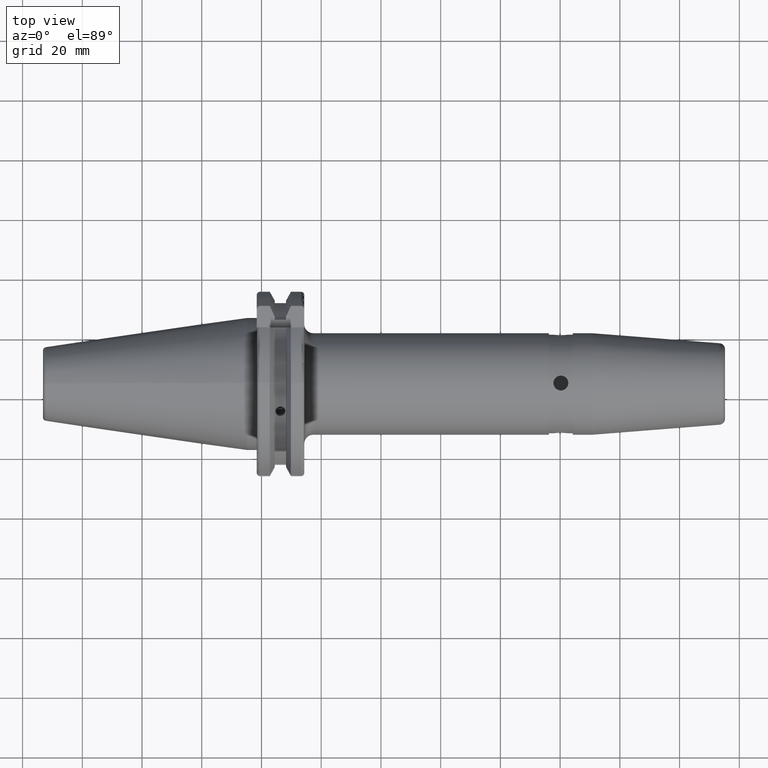
[diagram: clean part render]
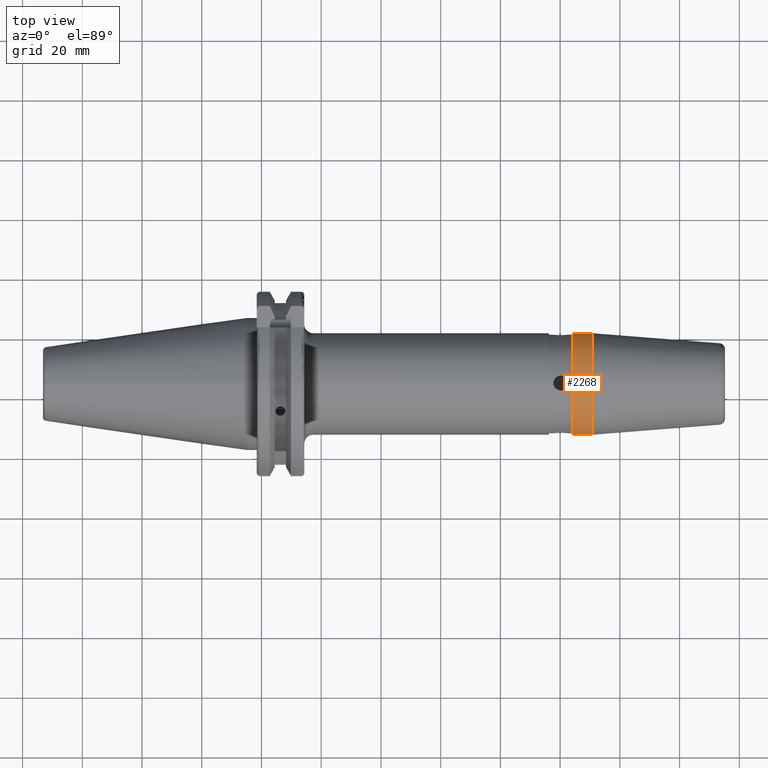
[diagram: same view with one face highlighted and labeled with its STEP entity id]
A machine part, top view. The second image highlights one B-rep face of the part: STEP entity #2268.
In plain terms, the highlighted cylindrical surface (partial cylindrical patch) has radius 17 mm, axis along (-1, 0, 0).
Its self-contained STEP definition (entity closure, byte-faithful):
#48 = VECTOR ( 'NONE', #1533, 1000.000000000000000 ) ;
#119 = DIRECTION ( 'NONE',  ( -1.000000000000000000, 0.0000000000000000000, 0.0000000000000000000 ) ) ;
#263 = DIRECTION ( 'NONE',  ( 0.0000000000000000000, 0.0000000000000000000, 1.000000000000000000 ) ) ;
#362 = CARTESIAN_POINT ( 'NONE',  ( 115.5282834233886859, 0.0000000000000000000, 0.0000000000000000000 ) ) ;
#520 = EDGE_LOOP ( 'NONE', ( #5213, #1461, #2389, #3382 ) ) ;
#744 = CYLINDRICAL_SURFACE ( 'NONE', #5543, 17.00000000000000000 ) ;
#899 = DIRECTION ( 'NONE',  ( 0.0000000000000000000, 0.0000000000000000000, 1.000000000000000000 ) ) ;
#1104 = AXIS2_PLACEMENT_3D ( 'NONE', #362, #4167, #899 ) ;
#1117 = CARTESIAN_POINT ( 'NONE',  ( 115.5282834233886859, 2.081899558550500280E-15, -17.00000000000000000 ) ) ;
#1190 = CARTESIAN_POINT ( 'NONE',  ( 5.775853106663938696, 0.0000000000000000000, 0.0000000000000000000 ) ) ;
#1399 = CARTESIAN_POINT ( 'NONE',  ( 109.0000000000244853, 0.0000000000000000000, 17.00000000000000000 ) ) ;
#1461 = ORIENTED_EDGE ( 'NONE', *, *, #6043, .T. ) ;
#1533 = DIRECTION ( 'NONE',  ( -1.000000000000000000, 0.0000000000000000000, 0.0000000000000000000 ) ) ;
#2268 = ADVANCED_FACE ( 'NONE', ( #6684 ), #744, .T. ) ;
#2389 = ORIENTED_EDGE ( 'NONE', *, *, #3345, .T. ) ;
#2599 = CIRCLE ( 'NONE', #1104, 17.00000000000000000 ) ;
#2644 = CIRCLE ( 'NONE', #2928, 17.00000000000000000 ) ;
#2798 = LINE ( 'NONE', #6413, #48 ) ;
#2802 = DIRECTION ( 'NONE',  ( -1.000000000000000000, 0.0000000000000000000, 0.0000000000000000000 ) ) ;
#2849 = DIRECTION ( 'NONE',  ( 0.0000000000000000000, 0.0000000000000000000, 1.000000000000000000 ) ) ;
#2865 = VECTOR ( 'NONE', #2802, 1000.000000000000000 ) ;
#2928 = AXIS2_PLACEMENT_3D ( 'NONE', #6762, #3545, #263 ) ;
#3013 = CARTESIAN_POINT ( 'NONE',  ( 115.5282834233886859, 0.0000000000000000000, 17.00000000000000000 ) ) ;
#3198 = VERTEX_POINT ( 'NONE', #3013 ) ;
#3345 = EDGE_CURVE ( 'NONE', #3198, #4545, #2798, .T. ) ;
#3382 = ORIENTED_EDGE ( 'NONE', *, *, #6984, .F. ) ;
#3526 = VERTEX_POINT ( 'NONE', #1117 ) ;
#3545 = DIRECTION ( 'NONE',  ( -1.000000000000000000, 0.0000000000000000000, 0.0000000000000000000 ) ) ;
#4167 = DIRECTION ( 'NONE',  ( -1.000000000000000000, 0.0000000000000000000, 0.0000000000000000000 ) ) ;
#4380 = CARTESIAN_POINT ( 'NONE',  ( 109.0000000000244853, 2.081899558550500280E-15, -17.00000000000000000 ) ) ;
#4545 = VERTEX_POINT ( 'NONE', #1399 ) ;
#4821 = EDGE_CURVE ( 'NONE', #3526, #6315, #6969, .T. ) ;
#5213 = ORIENTED_EDGE ( 'NONE', *, *, #4821, .F. ) ;
#5543 = AXIS2_PLACEMENT_3D ( 'NONE', #1190, #119, #2849 ) ;
#6017 = CARTESIAN_POINT ( 'NONE',  ( 5.775853106663938696, 2.081899558550500280E-15, -17.00000000000000000 ) ) ;
#6043 = EDGE_CURVE ( 'NONE', #3526, #3198, #2599, .T. ) ;
#6315 = VERTEX_POINT ( 'NONE', #4380 ) ;
#6413 = CARTESIAN_POINT ( 'NONE',  ( 5.775853106663938696, 0.0000000000000000000, 17.00000000000000000 ) ) ;
#6684 = FACE_OUTER_BOUND ( 'NONE', #520, .T. ) ;
#6762 = CARTESIAN_POINT ( 'NONE',  ( 109.0000000000244853, 0.0000000000000000000, 0.0000000000000000000 ) ) ;
#6969 = LINE ( 'NONE', #6017, #2865 ) ;
#6984 = EDGE_CURVE ( 'NONE', #6315, #4545, #2644, .T. ) ;